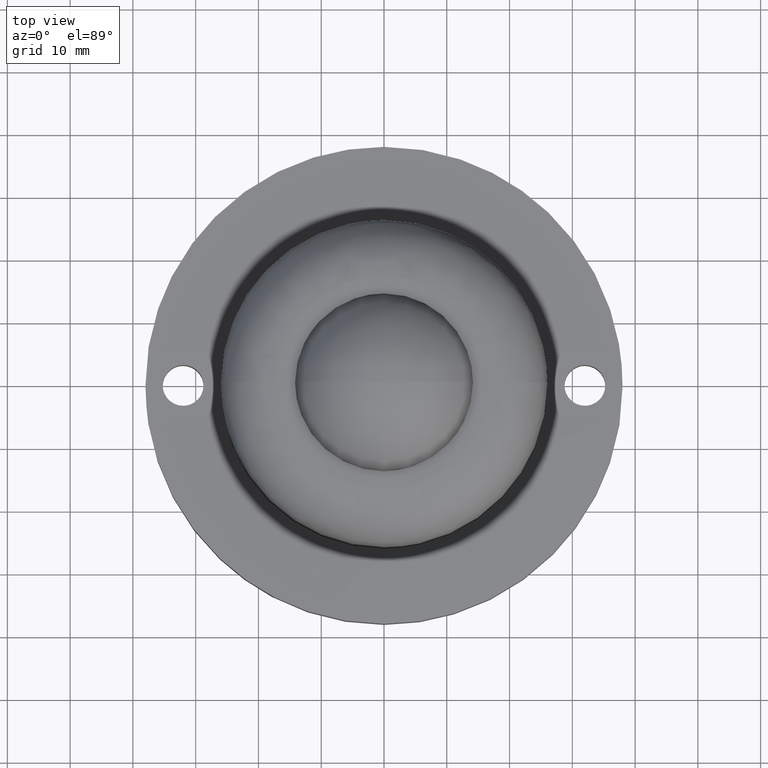
[diagram: clean part render]
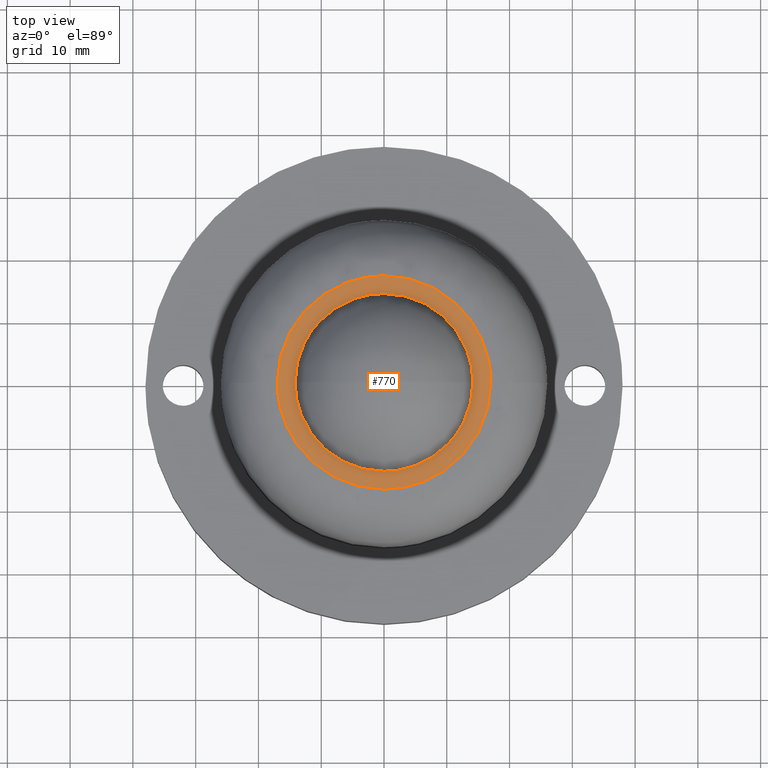
[diagram: same view with one face highlighted and labeled with its STEP entity id]
A machine part, top view. The second image highlights one B-rep face of the part: STEP entity #770.
In plain terms, the highlighted face is a freeform B-spline surface patch.
Its self-contained STEP definition (entity closure, byte-faithful):
#554=CARTESIAN_POINT('',(10.272053978941591,-9.747815195906693,37.000000000000007));
#555=VERTEX_POINT('',#554);
#561=CARTESIAN_POINT('',(14.161038097540640,0.0,37.0));
#562=VERTEX_POINT('',#561);
#563=CARTESIAN_POINT('',(14.161038097540640,0.0,37.0));
#564=CARTESIAN_POINT('',(14.161178133743080,-0.951950735130967,36.999999999999943));
#565=CARTESIAN_POINT('',(14.002288382756340,-2.519787893497782,37.000000000000071));
#566=CARTESIAN_POINT('',(13.321592098862141,-5.009780147293536,37.000000000000263));
#567=CARTESIAN_POINT('',(12.196699041505109,-7.405683638198017,36.999999999999311));
#568=CARTESIAN_POINT('',(10.966002455918380,-9.016791960339178,37.000000000000583));
#569=CARTESIAN_POINT('',(10.272053978941591,-9.747815195906693,37.000000000000007));
#570=B_SPLINE_CURVE_WITH_KNOTS('',3,(#563,#564,#565,#566,#567,#568,#569),.UNSPECIFIED.,.F.,.U.,(4,1,1,1,4),(0.000000015328961,2.855823443543724,4.703720701810730,7.727519958713213,10.751333841636900),.UNSPECIFIED.);
#571=EDGE_CURVE('',#562,#555,#570,.T.);
#573=CARTESIAN_POINT('',(0.000000842923835,14.161038097540620,37.0));
#574=VERTEX_POINT('',#573);
#575=CARTESIAN_POINT('',(0.000000842923835,14.161038097540620,37.0));
#576=CARTESIAN_POINT('',(1.013740541656461,14.161198210745320,37.000000000000007));
#577=CARTESIAN_POINT('',(2.548733858804941,13.995478949169460,37.000000000000050));
#578=CARTESIAN_POINT('',(4.869201838333894,13.353307186579300,36.999999999999893));
#579=CARTESIAN_POINT('',(6.571028393754015,12.598960052743291,36.999999999999993));
#580=CARTESIAN_POINT('',(8.366418465449531,11.477373575914340,37.000000000000043));
#581=CARTESIAN_POINT('',(9.979928002665927,10.144968671655080,36.999999999999709));
#582=CARTESIAN_POINT('',(11.418244179967250,8.467129490347860,37.000000000000497));
#583=CARTESIAN_POINT('',(12.555893774298189,6.645897629596570,36.999999999999218));
#584=CARTESIAN_POINT('',(13.326359199555570,4.922058514561366,36.999999999999979));
#585=CARTESIAN_POINT('',(13.981024358059861,2.664574403222846,36.999999999999957));
#586=CARTESIAN_POINT('',(14.161252464869280,1.042712697549732,37.000000000000519));
#587=CARTESIAN_POINT('',(14.161038097540640,0.0,37.0));
#588=B_SPLINE_CURVE_WITH_KNOTS('',3,(#575,#576,#577,#578,#579,#580,#581,#582,#583,#584,#585,#586,#587),.UNSPECIFIED.,.F.,.U.,(4,1,1,1,1,1,1,1,1,1,4),(0.000000064377105,3.041177279307927,4.605229569538849,7.211978518107568,8.602248913205218,10.948307704846490,13.468119326773451,15.205948877651901,17.378237447629189,19.116067434196228,22.244141046682191),.UNSPECIFIED.);
#589=EDGE_CURVE('',#574,#562,#588,.T.);
#591=CARTESIAN_POINT('',(-10.272053978941569,9.747815195906677,37.0));
#592=VERTEX_POINT('',#591);
#593=CARTESIAN_POINT('',(-10.272053978941569,9.747815195906677,37.0));
#594=CARTESIAN_POINT('',(-9.654069076103665,10.399191608701370,36.999999999999922));
#595=CARTESIAN_POINT('',(-8.633696278304951,11.287544489078140,37.000000000000171));
#596=CARTESIAN_POINT('',(-6.972852530391212,12.361019431860541,36.999999999999773));
#597=CARTESIAN_POINT('',(-5.386843284654057,13.146199500359019,37.000000000000171));
#598=CARTESIAN_POINT('',(-3.022717443959751,13.930267065025760,36.999999999999922));
#599=CARTESIAN_POINT('',(-1.167269372031640,14.161326198520561,37.000000000000043));
#600=CARTESIAN_POINT('',(0.000000842923835,14.161038097540620,37.0));
#601=B_SPLINE_CURVE_WITH_KNOTS('',3,(#593,#594,#595,#596,#597,#598,#599,#600),.UNSPECIFIED.,.F.,.U.,(4,1,1,1,1,4),(0.000000017742600,2.693626991316101,4.040447480132406,5.925968548540339,7.991088688280257,11.492808474082929),.UNSPECIFIED.);
#602=EDGE_CURVE('',#592,#574,#601,.T.);
#632=CARTESIAN_POINT('',(-14.161038097540640,0.0,37.0));
#633=VERTEX_POINT('',#632);
#634=CARTESIAN_POINT('',(-14.161038097540640,0.0,37.0));
#635=CARTESIAN_POINT('',(-14.161172694451400,0.951948901902285,37.000000000000007));
#636=CARTESIAN_POINT('',(-13.990977476798671,2.631788914665748,37.000000000000071));
#637=CARTESIAN_POINT('',(-13.264665354013870,5.169583082270806,36.999999999999979));
#638=CARTESIAN_POINT('',(-12.098111891546580,7.543687511634075,36.999999999999673));
#639=CARTESIAN_POINT('',(-10.927414928309910,9.057379319449090,37.000000000000291));
#640=CARTESIAN_POINT('',(-10.272053978941569,9.747815195906677,37.0));
#641=B_SPLINE_CURVE_WITH_KNOTS('',3,(#634,#635,#636,#637,#638,#639,#640),.UNSPECIFIED.,.F.,.U.,(4,1,1,1,4),(0.000000015330080,2.855823443544406,5.039696163458591,7.895510413422738,10.751333841636891),.UNSPECIFIED.);
#642=EDGE_CURVE('',#633,#592,#641,.T.);
#644=CARTESIAN_POINT('',(-0.000000842923732,-14.161038097540620,37.000000000000007));
#645=VERTEX_POINT('',#644);
#646=CARTESIAN_POINT('',(-0.000000842923732,-14.161038097540620,37.000000000000007));
#647=CARTESIAN_POINT('',(-0.897884282803724,-14.161152937495840,36.999999999999972));
#648=CARTESIAN_POINT('',(-2.288089130816767,-14.028340141716370,37.000000000000142));
#649=CARTESIAN_POINT('',(-4.230816772961100,-13.548033752769880,36.999999999999801));
#650=CARTESIAN_POINT('',(-5.752560631799086,-12.977061540964980,36.999999999999943));
#651=CARTESIAN_POINT('',(-7.477747454129301,-12.082018131095619,37.000000000000320));
#652=CARTESIAN_POINT('',(-9.181609216079689,-10.866357408639590,36.999999999999787));
#653=CARTESIAN_POINT('',(-10.886898602606809,-9.161058126687802,36.999999999999950));
#654=CARTESIAN_POINT('',(-12.198566746264349,-7.310700338793458,36.999999999999950));
#655=CARTESIAN_POINT('',(-13.210988887868499,-5.252357171322168,37.000000000000178));
#656=CARTESIAN_POINT('',(-13.958564328349009,-2.867333851313595,36.999999999999687));
#657=CARTESIAN_POINT('',(-14.161229839049289,-1.042704028494293,36.999999999999993));
#658=CARTESIAN_POINT('',(-14.161038097540640,0.0,37.0));
#659=B_SPLINE_CURVE_WITH_KNOTS('',3,(#646,#647,#648,#649,#650,#651,#652,#653,#654,#655,#656,#657,#658),.UNSPECIFIED.,.F.,.U.,(4,1,1,1,1,1,1,1,1,1,4),(0.000000064380572,2.693622288082860,4.170767081634104,5.995492050904588,7.559537012376165,9.992517185364280,12.251625549356200,14.771485121903879,16.769997180672529,19.116067434196371,22.244141046682248),.UNSPECIFIED.);
#660=EDGE_CURVE('',#645,#633,#659,.T.);
#662=CARTESIAN_POINT('',(10.272053978941591,-9.747815195906693,37.000000000000007));
#663=CARTESIAN_POINT('',(9.551124348453818,-10.507810819106950,37.000000000000043));
#664=CARTESIAN_POINT('',(8.169698689443258,-11.672391682264690,37.0));
#665=CARTESIAN_POINT('',(6.126336005852799,-12.816400339946989,37.000000000000021));
#666=CARTESIAN_POINT('',(4.368327703778074,-13.506514159897581,36.999999999999957));
#667=CARTESIAN_POINT('',(2.394296701325467,-14.018217409392189,37.000000000000142));
#668=CARTESIAN_POINT('',(0.897881178078107,-14.161141646681230,36.999999999999829));
#669=CARTESIAN_POINT('',(-0.000000842923732,-14.161038097540620,37.000000000000007));
#670=B_SPLINE_CURVE_WITH_KNOTS('',3,(#662,#663,#664,#665,#666,#667,#668,#669),.UNSPECIFIED.,.F.,.U.,(4,1,1,1,1,4),(0.000000017738417,3.142566483509583,5.387270938916034,7.003425205921413,8.799182635811995,11.492808474082860),.UNSPECIFIED.);
#671=EDGE_CURVE('',#555,#645,#670,.T.);
#679=CARTESIAN_POINT('',(-18.698299934229290,-18.698299934101112,37.0));
#680=CARTESIAN_POINT('',(18.698300846180359,-18.698299934101112,37.0));
#681=CARTESIAN_POINT('',(-18.698299934229290,18.698300846052170,37.0));
#682=CARTESIAN_POINT('',(18.698300846180359,18.698300846052170,37.0));
#683=B_SPLINE_SURFACE_WITH_KNOTS('',1,1,((#679,#681),(#680,#682)),.UNSPECIFIED.,.F.,.F.,.U.,(2,2),(2,2),(0.0,37.396600780409642),(0.0,37.396600780153292),.UNSPECIFIED.);
#684=CARTESIAN_POINT('',(-0.000000763991117,-16.999999999999730,37.0));
#685=VERTEX_POINT('',#684);
#686=CARTESIAN_POINT('',(-17.000000000116270,-1.999253E-015,37.0));
#687=VERTEX_POINT('',#686);
#688=CARTESIAN_POINT('',(-0.000000763991117,-16.999999999999730,37.0));
#689=CARTESIAN_POINT('',(-0.695403229188149,-17.000014289889439,36.999999999999943));
#690=CARTESIAN_POINT('',(-2.225290277149363,-16.906023604350160,37.000000000000192));
#691=CARTESIAN_POINT('',(-4.618926252006056,-16.429947025275620,36.999999999999837));
#692=CARTESIAN_POINT('',(-6.945549124535017,-15.581314134229221,37.000000000000107));
#693=CARTESIAN_POINT('',(-8.970263986453315,-14.491021534872621,36.999999999999908));
#694=CARTESIAN_POINT('',(-10.845643389437599,-13.161672578798770,37.000000000000270));
#695=CARTESIAN_POINT('',(-12.471812514527880,-11.632298483564551,37.000000000000043));
#696=CARTESIAN_POINT('',(-14.022957719838020,-9.706381020731183,37.000000000000092));
#697=CARTESIAN_POINT('',(-15.332071966229710,-7.522358136277576,36.999999999999922));
#698=CARTESIAN_POINT('',(-16.250718320384991,-5.183594913962859,37.000000000000050));
#699=CARTESIAN_POINT('',(-16.854146540806699,-2.642503947934382,37.0));
#700=CARTESIAN_POINT('',(-17.000100670793980,-1.008343017076303,36.999999999999893));
#701=CARTESIAN_POINT('',(-17.000000000116270,-1.999253E-015,37.0));
#702=B_SPLINE_CURVE_WITH_KNOTS('',3,(#688,#689,#690,#691,#692,#693,#694,#695,#696,#697,#698,#699,#700,#701),.UNSPECIFIED.,.F.,.U.,(4,1,1,1,1,1,1,1,1,1,1,4),(0.000000060102945,2.086212439964452,4.589664210474638,7.301760944261968,9.492307218685408,11.474198681401591,14.186265424762841,16.168158507815068,18.880265339192022,21.800970193135569,23.678566615175551,26.703579015132849),.UNSPECIFIED.);
#703=EDGE_CURVE('',#685,#687,#702,.T.);
#704=ORIENTED_EDGE('',*,*,#703,.F.);
#705=CARTESIAN_POINT('',(17.000000000116270,9.822633E-016,37.0));
#706=VERTEX_POINT('',#705);
#707=CARTESIAN_POINT('',(17.000000000116270,9.822633E-016,37.0));
#708=CARTESIAN_POINT('',(17.000221732324810,-1.216974722045821,37.000000000000057));
#709=CARTESIAN_POINT('',(16.778727660274200,-3.268324419492958,36.999999999999858));
#710=CARTESIAN_POINT('',(16.034985560489542,-5.775166798195232,37.000000000000142));
#711=CARTESIAN_POINT('',(15.061222246289841,-8.009022250592434,36.999999999999851));
#712=CARTESIAN_POINT('',(13.779025572776680,-10.089930330782570,37.000000000000298));
#713=CARTESIAN_POINT('',(12.173557367206030,-11.928029979998760,36.999999999999538));
#714=CARTESIAN_POINT('',(10.591397686844250,-13.344430750440351,37.000000000000377));
#715=CARTESIAN_POINT('',(8.999592763220354,-14.472827071477029,36.999999999999787));
#716=CARTESIAN_POINT('',(6.883641009713552,-15.612285227763151,36.999999999999282));
#717=CARTESIAN_POINT('',(4.618289760996543,-16.430673063253479,37.000000000001357));
#718=CARTESIAN_POINT('',(2.190512606638910,-16.905771253611189,36.999999999997662));
#719=CARTESIAN_POINT('',(0.730171635319192,-17.000021689214279,37.000000000001933));
#720=CARTESIAN_POINT('',(-0.000000763991117,-16.999999999999730,37.0));
#721=B_SPLINE_CURVE_WITH_KNOTS('',3,(#707,#708,#709,#710,#711,#712,#713,#714,#715,#716,#717,#718,#719,#720),.UNSPECIFIED.,.F.,.U.,(4,1,1,1,1,1,1,1,1,1,1,4),(0.000000060019108,3.650873987877230,6.154337838714337,7.823316487702936,10.952647423046489,13.456062523317909,15.125044988737180,17.315601377159130,19.297505307886912,22.322526389621750,24.513061915850681,26.703579876330259),.UNSPECIFIED.);
#722=EDGE_CURVE('',#706,#685,#721,.T.);
#723=ORIENTED_EDGE('',*,*,#722,.F.);
#724=CARTESIAN_POINT('',(0.000000763991105,16.999999999999730,37.0));
#725=VERTEX_POINT('',#724);
#726=CARTESIAN_POINT('',(0.000000763991105,16.999999999999730,37.0));
#727=CARTESIAN_POINT('',(1.182199963579071,17.000203223595999,37.000000000000057));
#728=CARTESIAN_POINT('',(3.094478162469597,16.799666988811090,36.999999999999943));
#729=CARTESIAN_POINT('',(5.443084699039448,16.141904094861911,37.000000000000107));
#730=CARTESIAN_POINT('',(7.250706520579092,15.412583959067740,36.999999999999957));
#731=CARTESIAN_POINT('',(8.940441153172714,14.509412885344990,37.000000000000121));
#732=CARTESIAN_POINT('',(10.820221190457060,13.185562306060170,36.999999999999837));
#733=CARTESIAN_POINT('',(12.497231257097670,11.608403624688520,37.000000000000121));
#734=CARTESIAN_POINT('',(14.238723503310680,9.432637289820734,36.999999999999979));
#735=CARTESIAN_POINT('',(15.568249073294760,7.051882848929261,37.000000000000099));
#736=CARTESIAN_POINT('',(16.384663142369678,4.678063123532904,36.999999999999737));
#737=CARTESIAN_POINT('',(16.874192270215449,2.433881198001875,37.000000000000732));
#738=CARTESIAN_POINT('',(17.000086053148589,0.973565629497224,36.999999999999190));
#739=CARTESIAN_POINT('',(17.000000000116270,9.822633E-016,37.0));
#740=B_SPLINE_CURVE_WITH_KNOTS('',3,(#726,#727,#728,#729,#730,#731,#732,#733,#734,#735,#736,#737,#738,#739),.UNSPECIFIED.,.F.,.U.,(4,1,1,1,1,1,1,1,1,1,1,4),(0.000000060104107,3.546548817192043,5.737096583402600,7.301760944262359,9.387983519953295,11.474198681402131,14.186265424763580,16.272490780969161,19.819062137265149,22.322525669924939,23.782898333579141,26.703579015132849),.UNSPECIFIED.);
#741=EDGE_CURVE('',#725,#706,#740,.T.);
#742=ORIENTED_EDGE('',*,*,#741,.F.);
#743=CARTESIAN_POINT('',(-17.000000000116270,-1.999253E-015,37.0));
#744=CARTESIAN_POINT('',(-17.000099431178299,1.043111359037903,37.0));
#745=CARTESIAN_POINT('',(-16.839479887511661,2.781583677752773,37.000000000000050));
#746=CARTESIAN_POINT('',(-16.289240421439931,4.978038901693621,36.999999999999993));
#747=CARTESIAN_POINT('',(-15.615717997241161,6.807182158996977,37.000000000000078));
#748=CARTESIAN_POINT('',(-14.759375267742870,8.521538781132884,36.999999999999822));
#749=CARTESIAN_POINT('',(-13.507409174614549,10.407762697570281,37.000000000000362));
#750=CARTESIAN_POINT('',(-11.896063244945021,12.241453723919310,36.999999999999467));
#751=CARTESIAN_POINT('',(-10.125437757606750,13.712757645988839,37.000000000000462));
#752=CARTESIAN_POINT('',(-7.953597554467897,15.097544918525250,36.999999999999957));
#753=CARTESIAN_POINT('',(-5.688228525915607,16.110025142480950,37.000000000000092));
#754=CARTESIAN_POINT('',(-2.816353669113031,16.838635602145079,37.000000000000547));
#755=CARTESIAN_POINT('',(-1.008339597010314,17.000096781639218,36.999999999998998));
#756=CARTESIAN_POINT('',(0.000000763991105,16.999999999999730,37.0));
#757=B_SPLINE_CURVE_WITH_KNOTS('',3,(#743,#744,#745,#746,#747,#748,#749,#750,#751,#752,#753,#754,#755,#756),.UNSPECIFIED.,.F.,.U.,(4,1,1,1,1,1,1,1,1,1,1,4),(0.000000060014035,3.129318967975795,5.215541225445833,6.780206405705080,8.970749803612890,10.952647423046010,13.560383469263931,16.272491306209069,17.837156940332740,21.279417584656489,23.678567379039428,26.703579876330242),.UNSPECIFIED.);
#758=EDGE_CURVE('',#687,#725,#757,.T.);
#759=ORIENTED_EDGE('',*,*,#758,.F.);
#760=EDGE_LOOP('',(#704,#723,#742,#759));
#761=FACE_OUTER_BOUND('',#760,.T.);
#762=ORIENTED_EDGE('',*,*,#589,.T.);
#763=ORIENTED_EDGE('',*,*,#571,.T.);
#764=ORIENTED_EDGE('',*,*,#671,.T.);
#765=ORIENTED_EDGE('',*,*,#660,.T.);
#766=ORIENTED_EDGE('',*,*,#642,.T.);
#767=ORIENTED_EDGE('',*,*,#602,.T.);
#768=EDGE_LOOP('',(#762,#763,#764,#765,#766,#767));
#769=FACE_BOUND('',#768,.T.);
#770=ADVANCED_FACE('',(#761,#769),#683,.T.);